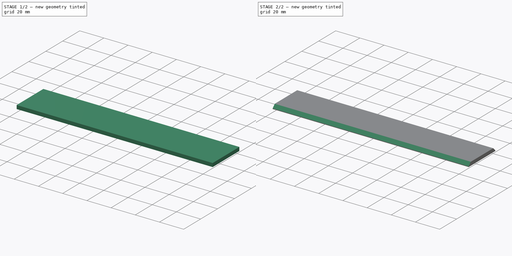
[diagram: build sequence overview — one tinted view per stage of 2, left to right]
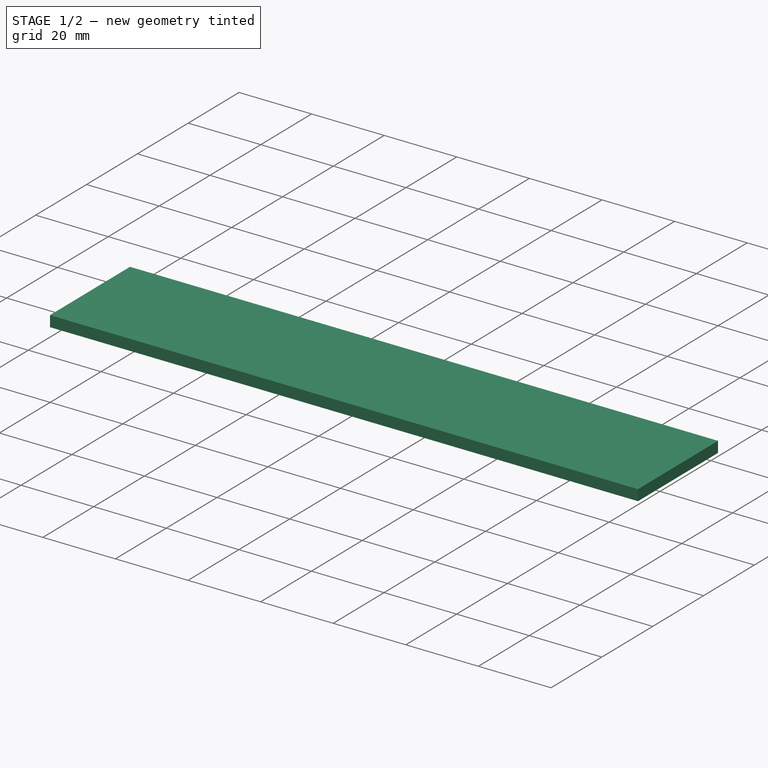
[diagram: stage 1 of 2 — iso view after this stage's code; geometry added in this stage tinted green]
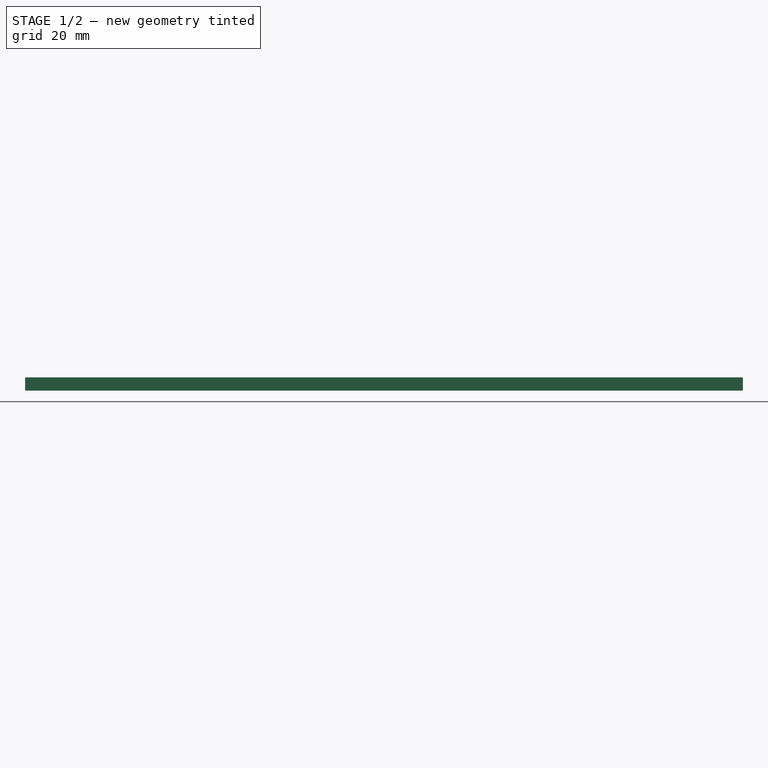
[diagram: stage 1 of 2 — front view after this stage's code; geometry added in this stage tinted green]
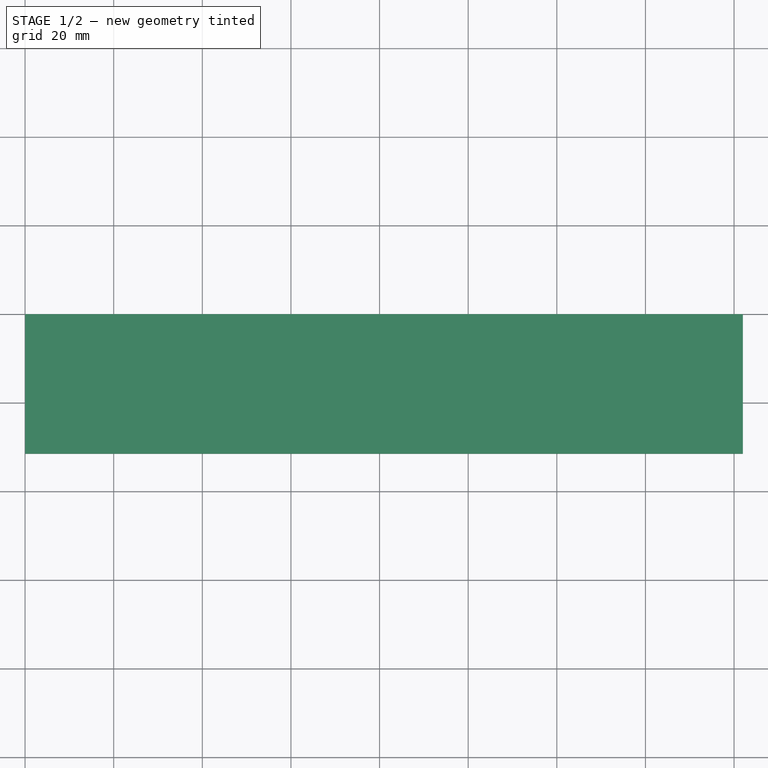
[diagram: stage 1 of 2 — top view after this stage's code; geometry added in this stage tinted green]
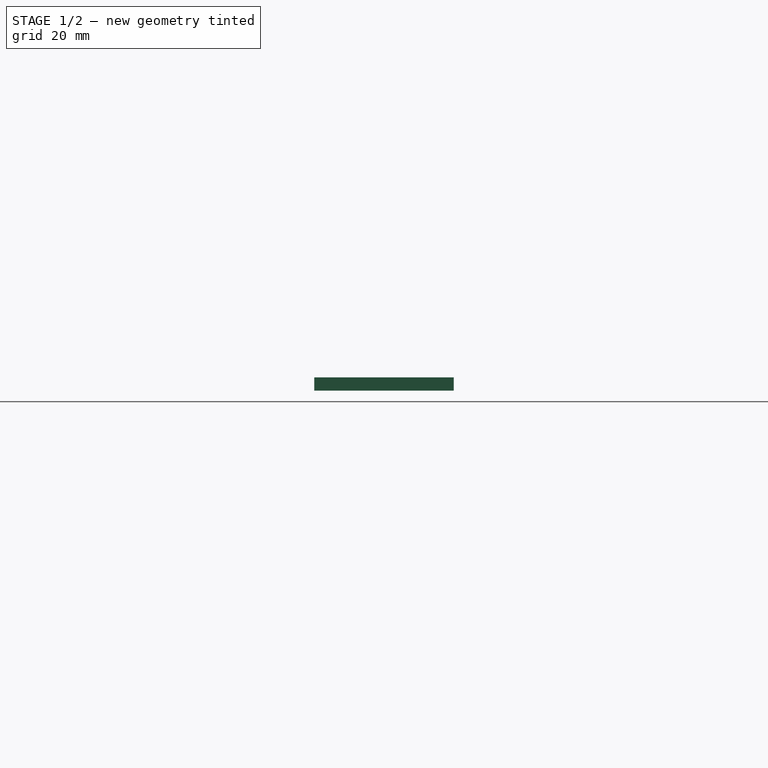
[diagram: stage 1 of 2 — right view after this stage's code; geometry added in this stage tinted green]
FCSTD DOCUMENT  (FreeCAD 0.21R33771 (Git))
Label: Strip_II
License: All rights reserved
LicenseURL: http://en.wikipedia.org/wiki/All_rights_reserved
objects: Spreadsheet::Sheet×1, Sketcher::SketchObject×1, PartDesign::Pad×1, PartDesign::Chamfer×1, PartDesign::Body×1, App::Part×1
note: 6 computed .brp shape members not serialized (recipe doc carries the construction recipe); baked Part::Feature solids carry a one-line shape summary decoded from their .brp

FEATURE [Spreadsheet::Sheet] Spreadsheet  label="params"
  cells = A1='length; B1(length)=162; A2='width; B2(width)=31.5; A3='height; B3(height)=3; A4='chamfer; B4(chamfer)=2.5
FEATURE [Sketcher::SketchObject] Sketch
  FullyConstrained = true
  MapMode = 2
  expr: Constraints[8] = <<params>>.length
  expr: Constraints[9] = <<params>>.width
  sketch-geometry (4):
    g0: LineSegment StartX=0 StartY=9e-16 StartZ=0 EndX=162 EndY=9e-16 EndZ=0
    g1: LineSegment StartX=162 StartY=9e-16 StartZ=0 EndX=162 EndY=-31.5 EndZ=0
    g2: LineSegment StartX=162 StartY=-31.5 StartZ=0 EndX=0 EndY=-31.5 EndZ=0
    g3: LineSegment StartX=0 StartY=-31.5 StartZ=0 EndX=0 EndY=0 EndZ=0
  constraints (11):
    c: Coincident(g0,g1)
    c: Coincident(g1,g2)
    c: Coincident(g2,g3)
    c: Coincident(g3,g0)
    c: Horizontal(g0)
    c: Horizontal(g2)
    c: Vertical(g1)
    c: Vertical(g3)
    c: DistanceX(g0,g0) = 162
    c: DistanceY(g1,g0) = 31.5
    c: Coincident(g0,g-1)
FEATURE [PartDesign::Pad] Pad
  Direction = (0,0,1)
  Length = 3
  Length2 = 10
  Profile = -> Sketch
  ReferenceAxis = -> Sketch [N_Axis]
  Type = 0
  expr: Length = <<params>>.height
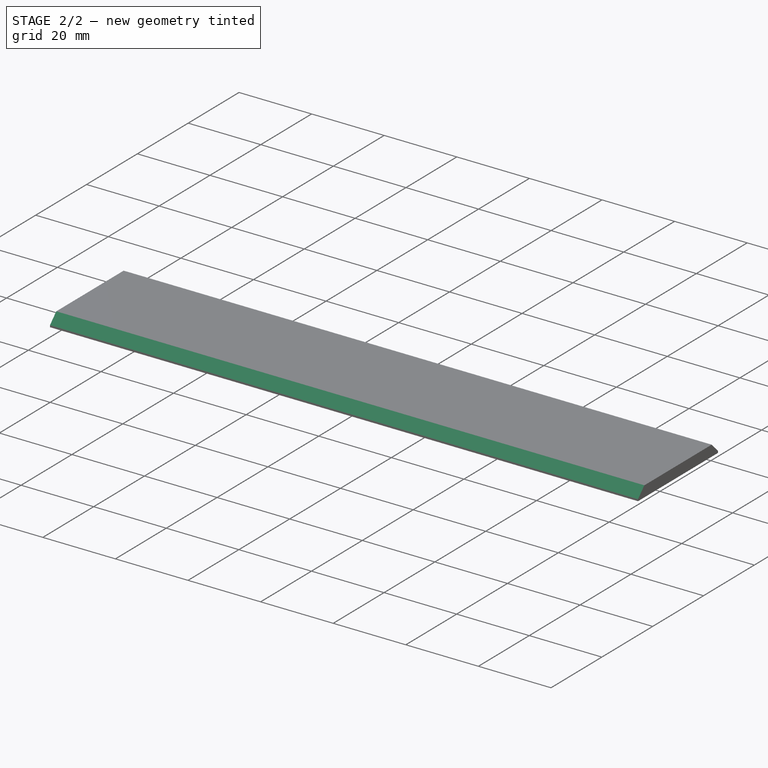
[diagram: stage 2 of 2 — iso view after this stage's code; geometry added in this stage tinted green]
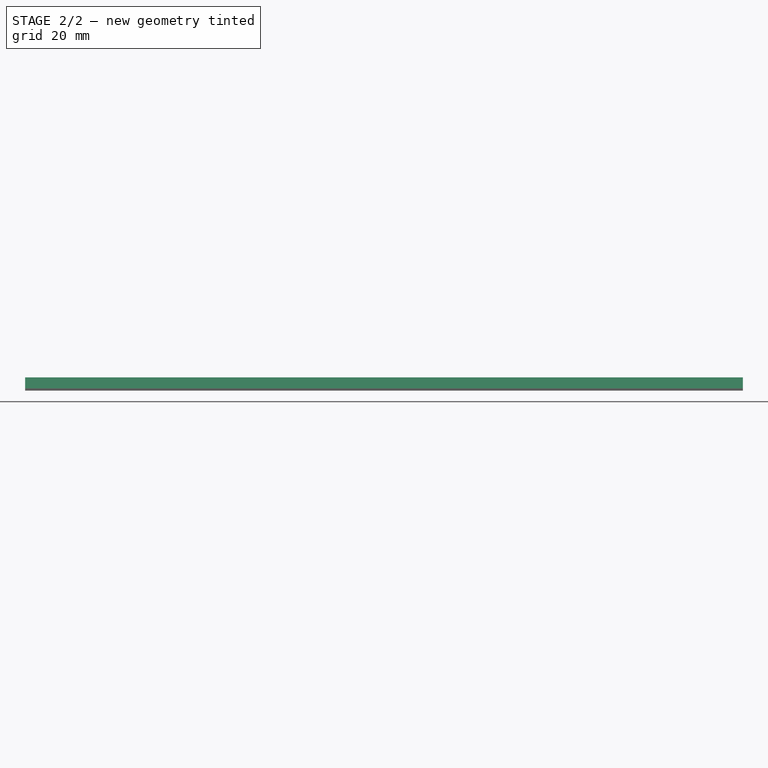
[diagram: stage 2 of 2 — front view after this stage's code; geometry added in this stage tinted green]
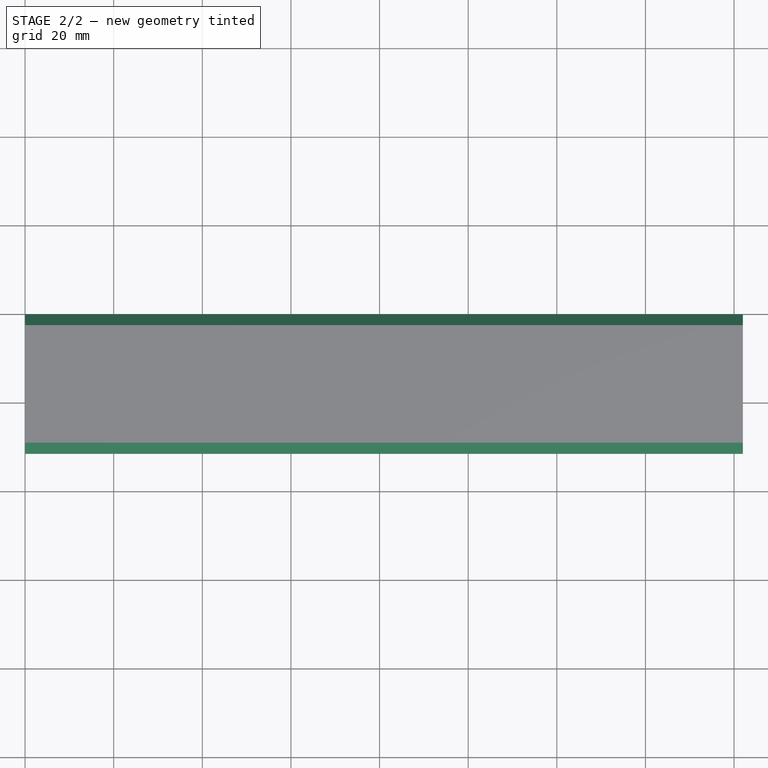
[diagram: stage 2 of 2 — top view after this stage's code; geometry added in this stage tinted green]
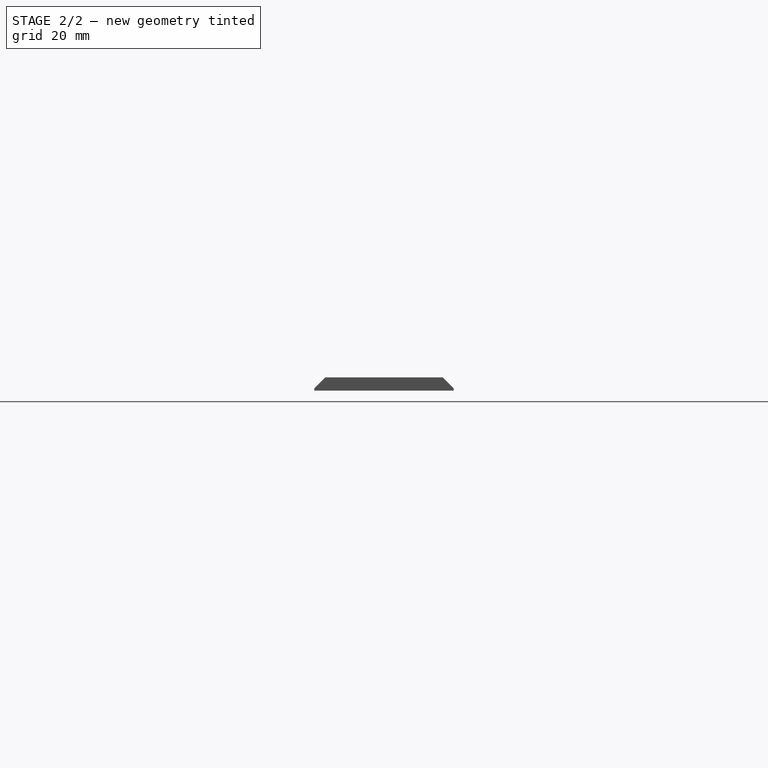
[diagram: stage 2 of 2 — right view after this stage's code; geometry added in this stage tinted green]
FEATURE [PartDesign::Chamfer] Chamfer
  Angle = 45
  Base = -> Pad [Edge10,Edge4]
  BaseFeature = -> Pad
  ChamferType = 0
  FlipDirection = false
  Size = 2.5
  Size2 = 1
  SupportTransform = false
  UseAllEdges = false
  expr: Size = <<params>>.chamfer
FEATURE [PartDesign::Body] Body
  Group = -> [Sketch,Pad,Chamfer]
  Origin = -> Origin001
  Tip = -> Chamfer
FEATURE [App::Part] Part  label="Strip"
  Group = -> [Body]
  Origin = -> Origin
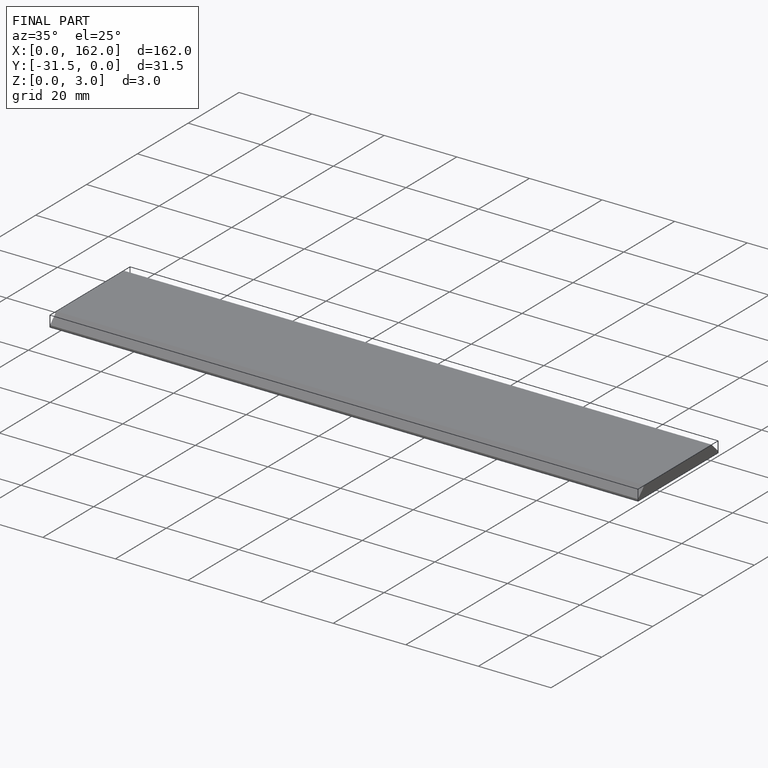
[diagram: finished part — iso view with bounding-box wireframe]
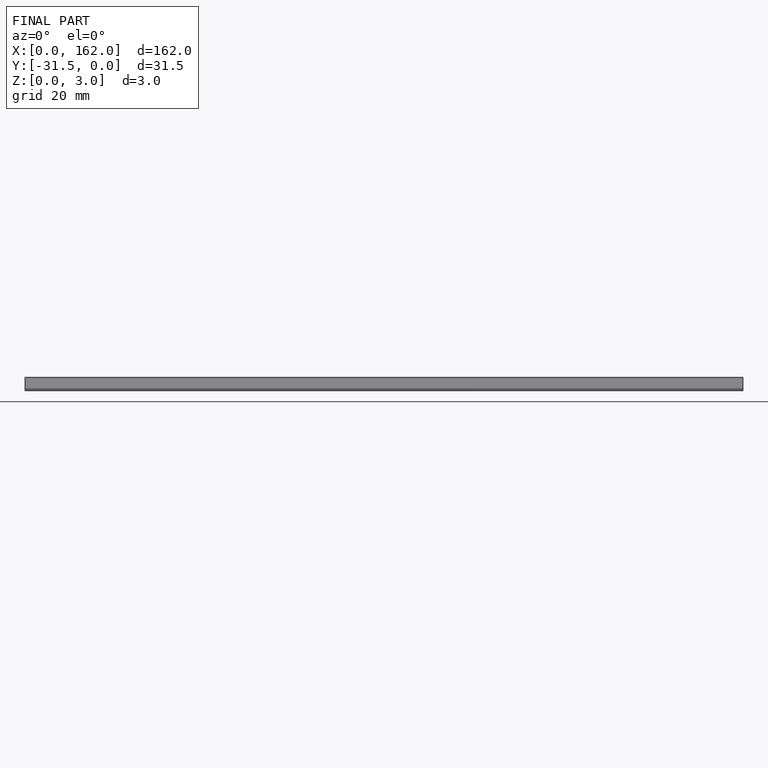
[diagram: finished part — front view with bounding-box wireframe]
